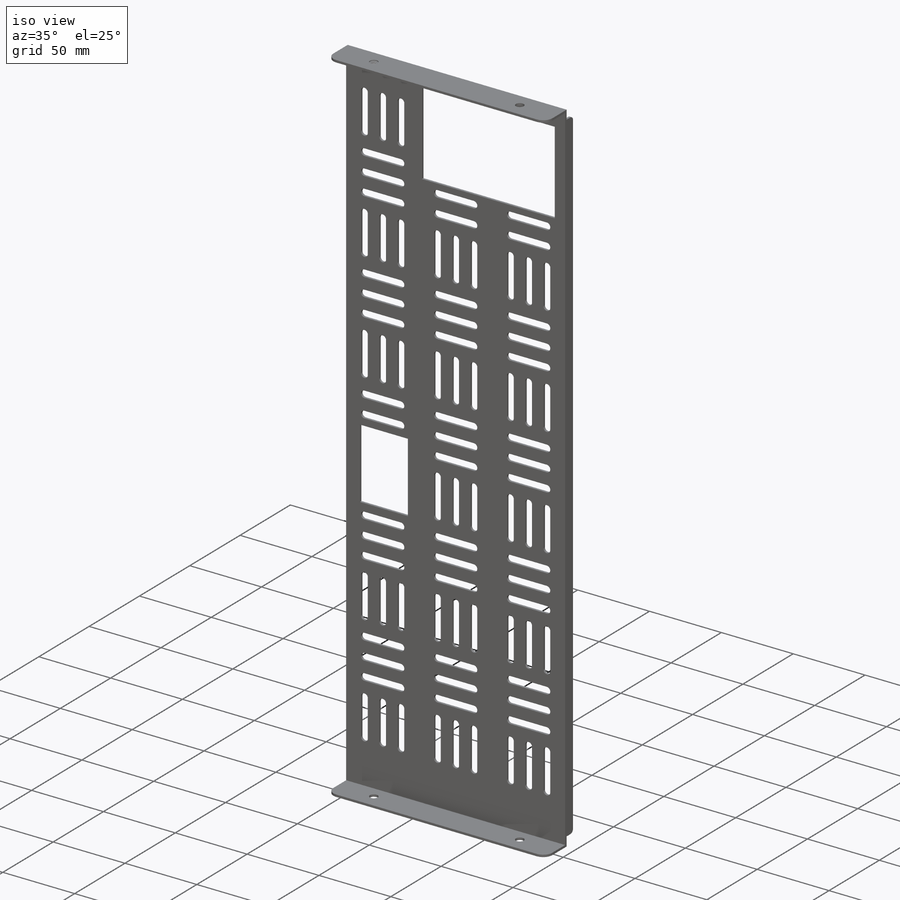
[diagram: iso view]
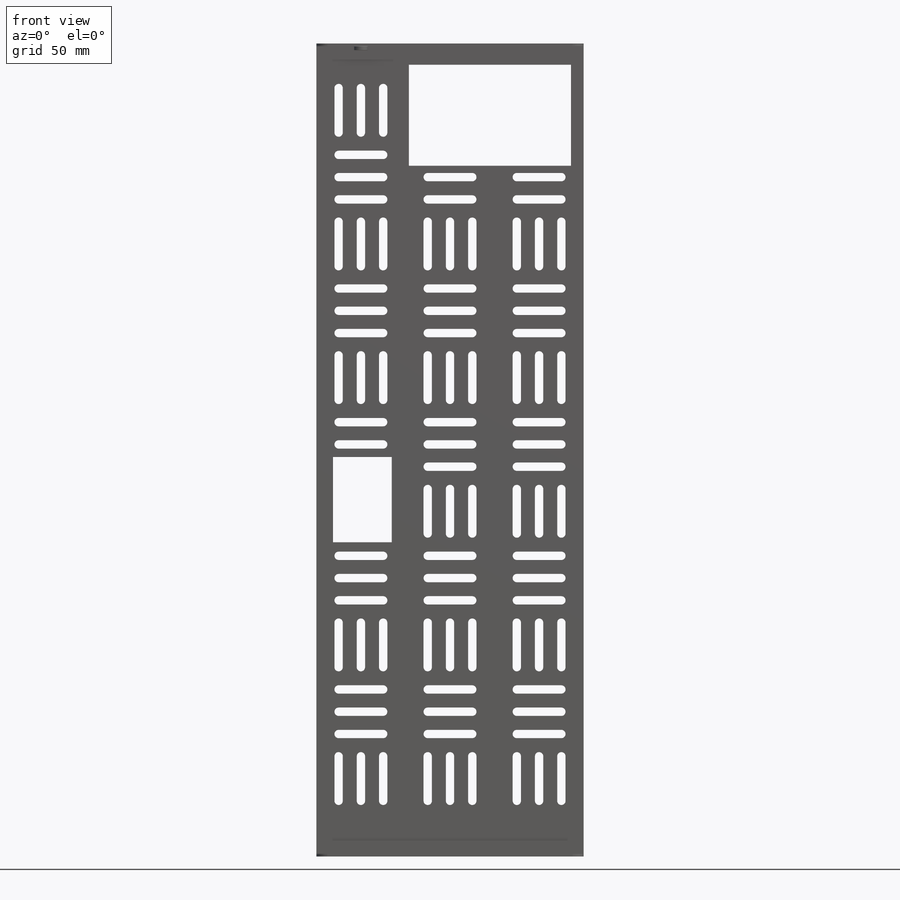
[diagram: front view]
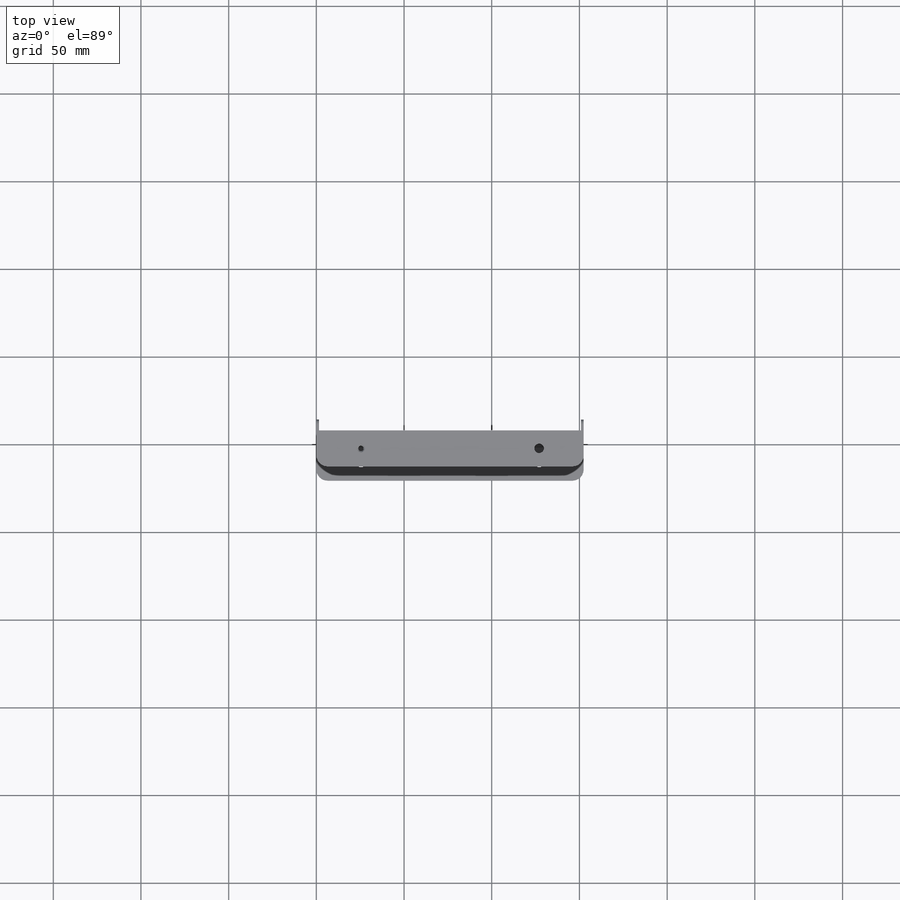
[diagram: top view]
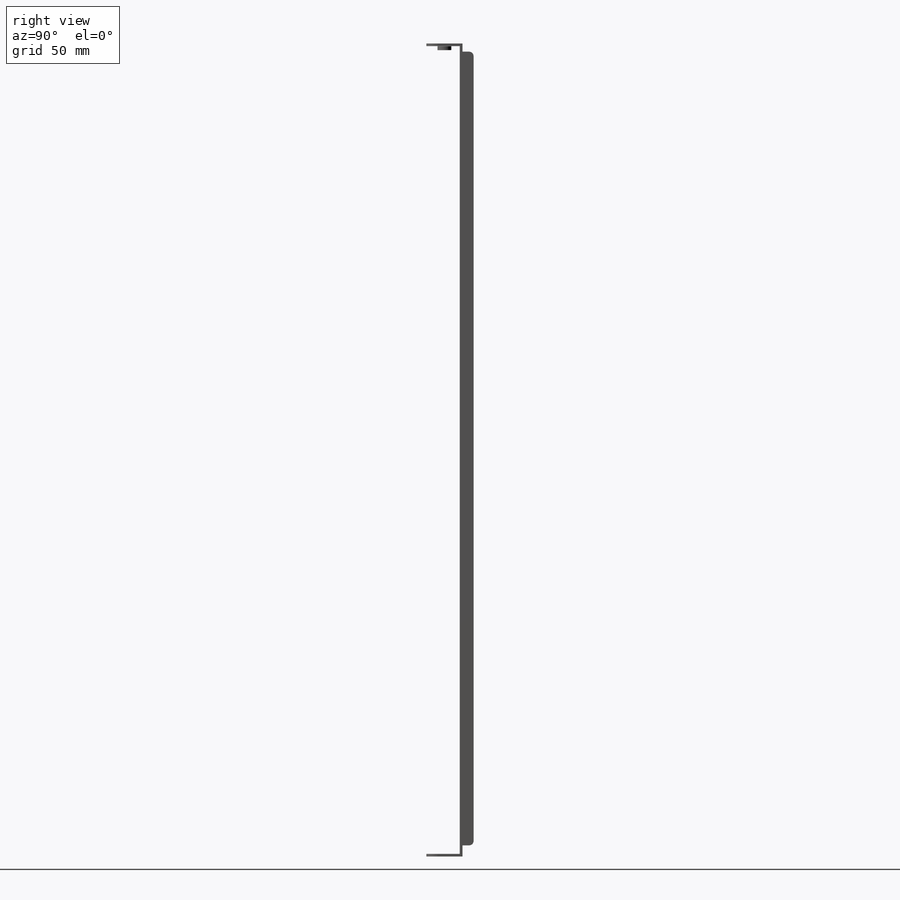
[diagram: right view]
SOLIDWORKS PART (.sldprt)
format: sldprt  version: not decoded by parser v0  size: 2,249,728 bytes
history: native  units: mm
features: sketch x5, extrude x3, cut_extrude x2, fillet x2, move_body x2, material x1, plane x1, mirror x1 + 2 further entries (+22 scaffold rows collapsed; 10 parser-record rows omitted)
feature tree (51):
  scaffold x22  (default folders/planes/origin — collapsed)
  material  "Material <not specified>"
  sketch  "Sketch1"  dims[D3=~2.38125mm D1=463.55mm D2=152.4mm D4=25.4mm D5=12.7mm D6=25.4mm D9=12.7mm D10=25.4mm D7=3.0 D8=3.0 D11=3.0 D12=3.0 D13=6.0]
  extrude  "Boss-Extrude1"  Depth=1.524mm
  sketch  "Sketch2"  dims[D1=1.524mm D2=1.524mm]
  extrude  "Boss-Extrude2"  Depth=19.05mm
  sketch  "Sketch6"  dims[D1=5.4102mm D2=101.6mm]
  cut_extrude  "Cut-Extrude2"  [1 undecoded]
  fillet  "Fillet1"  Radius=6.35mm
  sketch  "Sketch3"  dims[D1=1.524mm D2=6.35mm D3=6.35mm]
  extrude  "Boss-Extrude3"  Depth=6.35mm
  fillet  "Fillet2"  Radius=2.54mm
  sketch  "Sketch4"
  cut_extrude  "Cut-Extrude1"  Depth=6.35mm
  "96439A320"
  parser-record x10  (decoder bookkeeping rows leaked as tree rows — omitted from the tree; the rows remain in map.json)
  move_body  "Body-Move/Copy2"
  "96439A3202"
  move_body  "Body-Move/Copy4"
  plane  "Plane1"
  mirror  "Mirror1"
decode coverage: 10 of 15 modeling features carry decoded parameters; 2 rows unclassified (native names shown)
note: ~ marks probable driven/reference dimensions
note: 1 parameter value undecoded
note: suppression state not decoded; provenance and decode notes live in map.json
